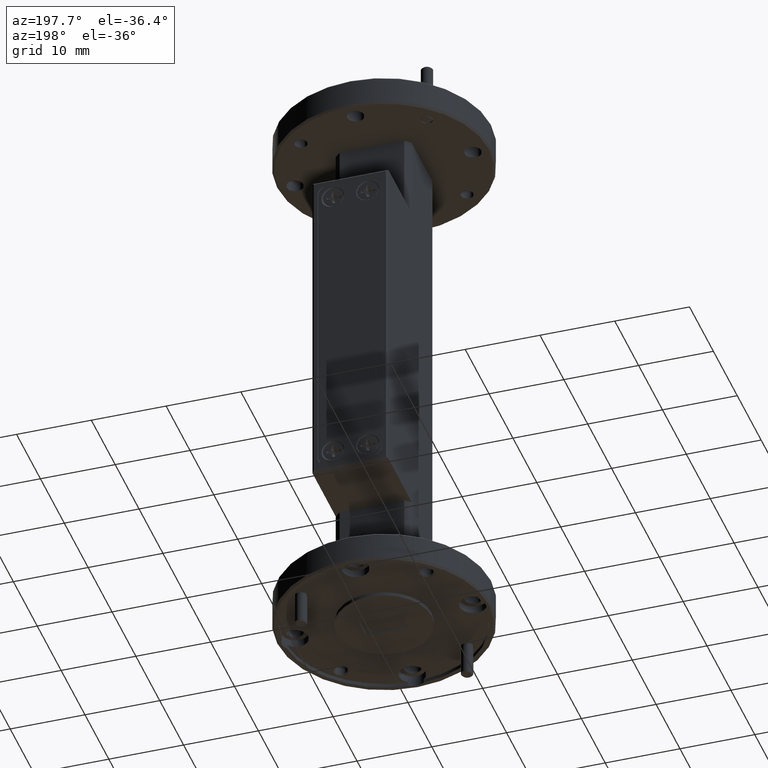
[diagram: clean part render]
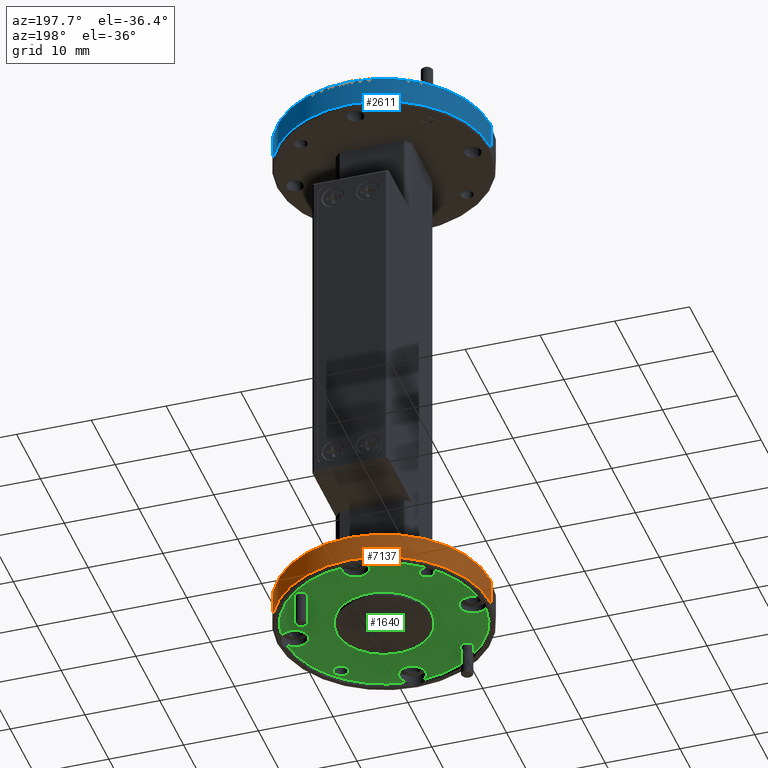
[diagram: same view with three faces highlighted in distinct colors, each labeled with its STEP entity id]
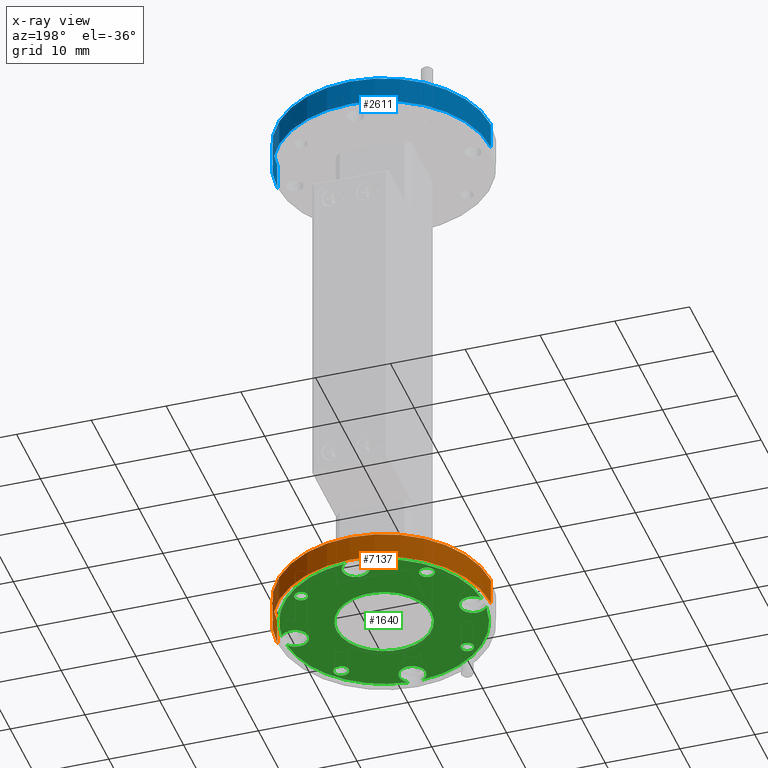
[diagram: x-ray of the same camera — body ghosted, the three highlighted faces saturated]
A machine part, auxiliary view with three faces highlighted in distinct colors.
The next image is the same camera in x-ray (body ghosted, the three faces saturated) — at least one of them is partly hidden behind the body in this view.
Their STEP definitions:

[orange] entity #7137 — the highlighted cylindrical surface (partial cylindrical patch) has radius 14.2875 mm, axis along (0, 0, -1).
#263 = ORIENTED_EDGE ( 'NONE', *, *, #2705, .F. ) ;
#459 = CARTESIAN_POINT ( 'NONE',  ( 0.5625000000000001110, 6.888638245203861944E-17, -1.489999999999999325 ) ) ;
#472 = CARTESIAN_POINT ( 'NONE',  ( -0.5625000000000001110, 0.000000000000000000, -1.349999999999999423 ) ) ;
#641 = FACE_OUTER_BOUND ( 'NONE', #9032, .T. ) ;
#962 = VECTOR ( 'NONE', #1798, 39.37007874015748143 ) ;
#1264 = CARTESIAN_POINT ( 'NONE',  ( -0.5625000000000001110, 0.000000000000000000, -1.340000000000000080 ) ) ;
#1411 = CARTESIAN_POINT ( 'NONE',  ( 0.5625000000000001110, 6.888638245203861944E-17, -1.349999999999999423 ) ) ;
#1439 = EDGE_CURVE ( 'NONE', #3042, #4319, #8680, .T. ) ;
#1650 = EDGE_CURVE ( 'NONE', #7949, #3042, #5597, .T. ) ;
#1798 = DIRECTION ( 'NONE',  ( 0.000000000000000000, 0.000000000000000000, -1.000000000000000000 ) ) ;
#2187 = DIRECTION ( 'NONE',  ( -1.000000000000000000, 0.000000000000000000, 0.000000000000000000 ) ) ;
#2399 = CARTESIAN_POINT ( 'NONE',  ( 0.5625000000000001110, 6.888638245203861944E-17, -1.340000000000000080 ) ) ;
#2705 = EDGE_CURVE ( 'NONE', #2740, #4319, #8337, .T. ) ;
#2740 = VERTEX_POINT ( 'NONE', #472 ) ;
#2851 = ORIENTED_EDGE ( 'NONE', *, *, #6628, .T. ) ;
#2879 = VECTOR ( 'NONE', #7442, 39.37007874015748143 ) ;
#3042 = VERTEX_POINT ( 'NONE', #459 ) ;
#3670 = CARTESIAN_POINT ( 'NONE',  ( 0.000000000000000000, 0.000000000000000000, -1.340000000000000080 ) ) ;
#4051 = CIRCLE ( 'NONE', #5340, 0.5625000000000001110 ) ;
#4148 = CARTESIAN_POINT ( 'NONE',  ( 0.000000000000000000, 0.000000000000000000, -1.489999999999999325 ) ) ;
#4176 = DIRECTION ( 'NONE',  ( -1.000000000000000000, 0.000000000000000000, 0.000000000000000000 ) ) ;
#4319 = VERTEX_POINT ( 'NONE', #9543 ) ;
#4354 = AXIS2_PLACEMENT_3D ( 'NONE', #4148, #8809, #8717 ) ;
#4531 = DIRECTION ( 'NONE',  ( 0.000000000000000000, 0.000000000000000000, -1.000000000000000000 ) ) ;
#4791 = ORIENTED_EDGE ( 'NONE', *, *, #1650, .T. ) ;
#5340 = AXIS2_PLACEMENT_3D ( 'NONE', #5844, #9545, #4176 ) ;
#5597 = LINE ( 'NONE', #2399, #962 ) ;
#5844 = CARTESIAN_POINT ( 'NONE',  ( 0.000000000000000000, 0.000000000000000000, -1.349999999999999423 ) ) ;
#6628 = EDGE_CURVE ( 'NONE', #2740, #7949, #4051, .T. ) ;
#7137 = ADVANCED_FACE ( 'NONE', ( #641 ), #9745, .T. ) ;
#7442 = DIRECTION ( 'NONE',  ( 0.000000000000000000, 0.000000000000000000, -1.000000000000000000 ) ) ;
#7475 = ORIENTED_EDGE ( 'NONE', *, *, #1439, .T. ) ;
#7949 = VERTEX_POINT ( 'NONE', #1411 ) ;
#8337 = LINE ( 'NONE', #1264, #2879 ) ;
#8680 = CIRCLE ( 'NONE', #4354, 0.5625000000000001110 ) ;
#8717 = DIRECTION ( 'NONE',  ( 1.000000000000000000, 0.000000000000000000, 0.000000000000000000 ) ) ;
#8809 = DIRECTION ( 'NONE',  ( -0.000000000000000000, -0.000000000000000000, 1.000000000000000000 ) ) ;
#9032 = EDGE_LOOP ( 'NONE', ( #2851, #4791, #7475, #263 ) ) ;
#9062 = AXIS2_PLACEMENT_3D ( 'NONE', #3670, #4531, #2187 ) ;
#9543 = CARTESIAN_POINT ( 'NONE',  ( -0.5625000000000001110, 0.000000000000000000, -1.489999999999999325 ) ) ;
#9545 = DIRECTION ( 'NONE',  ( 0.000000000000000000, 0.000000000000000000, -1.000000000000000000 ) ) ;
#9745 = CYLINDRICAL_SURFACE ( 'NONE', #9062, 0.5625000000000001110 ) ;

[blue] entity #2611 — the highlighted cylindrical surface (partial cylindrical patch) has radius 14.2875 mm, axis along (0, 0, 1).
#351 = DIRECTION ( 'NONE',  ( 0.000000000000000000, 0.000000000000000000, 1.000000000000000000 ) ) ;
#422 = CYLINDRICAL_SURFACE ( 'NONE', #4492, 0.5625000000000001110 ) ;
#566 = CARTESIAN_POINT ( 'NONE',  ( 0.5625000000000001110, 0.000000000000000000, 1.489999999999999769 ) ) ;
#636 = VERTEX_POINT ( 'NONE', #8751 ) ;
#702 = DIRECTION ( 'NONE',  ( 0.000000000000000000, 0.000000000000000000, 1.000000000000000000 ) ) ;
#739 = EDGE_LOOP ( 'NONE', ( #8334, #4835, #7617, #5016 ) ) ;
#1117 = CARTESIAN_POINT ( 'NONE',  ( 0.000000000000000000, 0.000000000000000000, 1.489999999999999769 ) ) ;
#1166 = VECTOR ( 'NONE', #702, 39.37007874015748143 ) ;
#1235 = DIRECTION ( 'NONE',  ( 1.000000000000000000, 0.000000000000000000, 0.000000000000000000 ) ) ;
#1440 = CARTESIAN_POINT ( 'NONE',  ( 0.5625000000000001110, 0.000000000000000000, 1.350000000000000089 ) ) ;
#1549 = CARTESIAN_POINT ( 'NONE',  ( 0.5625000000000001110, 0.000000000000000000, 1.340000000000000080 ) ) ;
#1768 = VECTOR ( 'NONE', #351, 39.37007874015748143 ) ;
#1990 = CARTESIAN_POINT ( 'NONE',  ( 0.000000000000000000, 0.000000000000000000, 1.350000000000000089 ) ) ;
#2543 = EDGE_CURVE ( 'NONE', #636, #7966, #5444, .T. ) ;
#2545 = CARTESIAN_POINT ( 'NONE',  ( -0.5625000000000001110, 6.888638245203861944E-17, 1.340000000000000080 ) ) ;
#2611 = ADVANCED_FACE ( 'NONE', ( #5724 ), #422, .T. ) ;
#2797 = CARTESIAN_POINT ( 'NONE',  ( -0.5625000000000001110, 6.888638245203861944E-17, 1.350000000000000089 ) ) ;
#3259 = DIRECTION ( 'NONE',  ( 0.000000000000000000, 0.000000000000000000, -1.000000000000000000 ) ) ;
#3315 = EDGE_CURVE ( 'NONE', #5076, #636, #7120, .T. ) ;
#3349 = CARTESIAN_POINT ( 'NONE',  ( 0.000000000000000000, 0.000000000000000000, 1.340000000000000080 ) ) ;
#3645 = EDGE_CURVE ( 'NONE', #7138, #7966, #6821, .T. ) ;
#4492 = AXIS2_PLACEMENT_3D ( 'NONE', #3349, #6428, #8730 ) ;
#4835 = ORIENTED_EDGE ( 'NONE', *, *, #3315, .T. ) ;
#5011 = DIRECTION ( 'NONE',  ( 1.000000000000000000, 0.000000000000000000, 0.000000000000000000 ) ) ;
#5016 = ORIENTED_EDGE ( 'NONE', *, *, #3645, .F. ) ;
#5032 = DIRECTION ( 'NONE',  ( -0.000000000000000000, -0.000000000000000000, 1.000000000000000000 ) ) ;
#5076 = VERTEX_POINT ( 'NONE', #2797 ) ;
#5444 = CIRCLE ( 'NONE', #8007, 0.5625000000000001110 ) ;
#5724 = FACE_OUTER_BOUND ( 'NONE', #739, .T. ) ;
#6004 = CIRCLE ( 'NONE', #8858, 0.5625000000000001110 ) ;
#6428 = DIRECTION ( 'NONE',  ( 0.000000000000000000, 0.000000000000000000, 1.000000000000000000 ) ) ;
#6665 = EDGE_CURVE ( 'NONE', #7138, #5076, #6004, .T. ) ;
#6821 = LINE ( 'NONE', #1549, #1166 ) ;
#7120 = LINE ( 'NONE', #2545, #1768 ) ;
#7138 = VERTEX_POINT ( 'NONE', #1440 ) ;
#7617 = ORIENTED_EDGE ( 'NONE', *, *, #2543, .T. ) ;
#7966 = VERTEX_POINT ( 'NONE', #566 ) ;
#8007 = AXIS2_PLACEMENT_3D ( 'NONE', #1117, #3259, #5011 ) ;
#8334 = ORIENTED_EDGE ( 'NONE', *, *, #6665, .T. ) ;
#8730 = DIRECTION ( 'NONE',  ( 1.000000000000000000, 0.000000000000000000, 0.000000000000000000 ) ) ;
#8751 = CARTESIAN_POINT ( 'NONE',  ( -0.5625000000000001110, 6.888638245203861944E-17, 1.489999999999999769 ) ) ;
#8858 = AXIS2_PLACEMENT_3D ( 'NONE', #1990, #5032, #1235 ) ;

[green] entity #1640 — the highlighted planar face has unit normal (0, 0, -1).
#32 = ORIENTED_EDGE ( 'NONE', *, *, #5494, .T. ) ;
#128 = DIRECTION ( 'NONE',  ( -0.000000000000000000, -0.000000000000000000, -1.000000000000000000 ) ) ;
#149 = AXIS2_PLACEMENT_3D ( 'NONE', #5745, #8800, #4230 ) ;
#171 = AXIS2_PLACEMENT_3D ( 'NONE', #510, #5051, #8120 ) ;
#252 = CARTESIAN_POINT ( 'NONE',  ( 0.4687500000000000000, 0.000000000000000000, -1.479999999999999982 ) ) ;
#265 = CARTESIAN_POINT ( 'NONE',  ( -0.07000000000000010381, -0.4687500000000000000, -1.479999999999999982 ) ) ;
#344 = CARTESIAN_POINT ( 'NONE',  ( -0.2964563036811923569, -0.3314563036811958296, -1.479999999999999982 ) ) ;
#379 = DIRECTION ( 'NONE',  ( -1.000000000000000000, 0.000000000000000000, 0.000000000000000000 ) ) ;
#418 = DIRECTION ( 'NONE',  ( -1.000000000000000000, 0.000000000000000000, 0.000000000000000000 ) ) ;
#484 = AXIS2_PLACEMENT_3D ( 'NONE', #9119, #9878, #2212 ) ;
#504 = ORIENTED_EDGE ( 'NONE', *, *, #8886, .F. ) ;
#510 = CARTESIAN_POINT ( 'NONE',  ( -0.3314563036811946639, 0.3314563036811936092, -1.479999999999999982 ) ) ;
#546 = DIRECTION ( 'NONE',  ( -0.000000000000000000, -0.000000000000000000, -1.000000000000000000 ) ) ;
#605 = EDGE_CURVE ( 'NONE', #5091, #6463, #1354, .T. ) ;
#624 = CIRCLE ( 'NONE', #1418, 0.5274999999999999689 ) ;
#644 = DIRECTION ( 'NONE',  ( -1.000000000000000000, 0.000000000000000000, 0.000000000000000000 ) ) ;
#652 = AXIS2_PLACEMENT_3D ( 'NONE', #3750, #2306, #2210 ) ;
#704 = EDGE_CURVE ( 'NONE', #7245, #822, #3133, .T. ) ;
#821 = DIRECTION ( 'NONE',  ( 0.000000000000000000, 0.000000000000000000, -1.000000000000000000 ) ) ;
#822 = VERTEX_POINT ( 'NONE', #1872 ) ;
#938 = CARTESIAN_POINT ( 'NONE',  ( -9.184850993605148438E-17, -0.4687500000000000000, -1.479999999999999982 ) ) ;
#942 = CIRCLE ( 'NONE', #149, 0.07000000000000000666 ) ;
#967 = EDGE_CURVE ( 'NONE', #5338, #2114, #2624, .T. ) ;
#996 = PLANE ( 'NONE',  #3671 ) ;
#1044 = DIRECTION ( 'NONE',  ( 0.000000000000000000, 0.000000000000000000, -1.000000000000000000 ) ) ;
#1072 = DIRECTION ( 'NONE',  ( -1.000000000000000000, 0.000000000000000000, 0.000000000000000000 ) ) ;
#1091 = DIRECTION ( 'NONE',  ( 0.000000000000000000, 0.000000000000000000, -1.000000000000000000 ) ) ;
#1100 = CARTESIAN_POINT ( 'NONE',  ( -0.07000000000000010381, 0.4687500000000000000, -1.479999999999999982 ) ) ;
#1109 = VERTEX_POINT ( 'NONE', #1470 ) ;
#1134 = DIRECTION ( 'NONE',  ( -1.000000000000000000, 0.000000000000000000, 0.000000000000000000 ) ) ;
#1169 = CIRCLE ( 'NONE', #6791, 0.03500000000000003803 ) ;
#1191 = DIRECTION ( 'NONE',  ( -1.000000000000000000, 0.000000000000000000, 0.000000000000000000 ) ) ;
#1251 = CARTESIAN_POINT ( 'NONE',  ( 0.2500000000000000000, 3.061616997868383018E-17, -1.479999999999999982 ) ) ;
#1262 = AXIS2_PLACEMENT_3D ( 'NONE', #5020, #3507, #5833 ) ;
#1318 = ORIENTED_EDGE ( 'NONE', *, *, #1553, .F. ) ;
#1323 = VERTEX_POINT ( 'NONE', #6322 ) ;
#1331 = CARTESIAN_POINT ( 'NONE',  ( 0.3714563036811946439, -0.3314563036811936092, -1.479999999999999982 ) ) ;
#1354 = CIRCLE ( 'NONE', #3569, 0.07000000000000000666 ) ;
#1358 = DIRECTION ( 'NONE',  ( -0.000000000000000000, -0.000000000000000000, -1.000000000000000000 ) ) ;
#1399 = CARTESIAN_POINT ( 'NONE',  ( 0.000000000000000000, 0.000000000000000000, -1.479999999999999982 ) ) ;
#1418 = AXIS2_PLACEMENT_3D ( 'NONE', #4232, #4939, #2095 ) ;
#1436 = CIRCLE ( 'NONE', #3168, 0.5274999999999999689 ) ;
#1470 = CARTESIAN_POINT ( 'NONE',  ( -0.04034337585031760876, -0.5259549999999999503, -1.479999999999999982 ) ) ;
#1475 = EDGE_CURVE ( 'NONE', #2114, #9507, #6559, .T. ) ;
#1494 = CIRCLE ( 'NONE', #8684, 0.07000000000000000666 ) ;
#1529 = ORIENTED_EDGE ( 'NONE', *, *, #704, .F. ) ;
#1553 = EDGE_CURVE ( 'NONE', #5856, #3709, #9281, .T. ) ;
#1572 = CARTESIAN_POINT ( 'NONE',  ( -9.184850993605148438E-17, -0.4687500000000000000, -1.479999999999999982 ) ) ;
#1633 = CARTESIAN_POINT ( 'NONE',  ( -9.184850993605148438E-17, -0.4687500000000000000, -1.479999999999999982 ) ) ;
#1640 = ADVANCED_FACE ( 'NONE', ( #7164, #3942, #4844, #5451, #8653, #4701 ), #996, .T. ) ;
#1652 = EDGE_CURVE ( 'NONE', #2044, #7447, #3494, .T. ) ;
#1752 = DIRECTION ( 'NONE',  ( 0.000000000000000000, 0.000000000000000000, -1.000000000000000000 ) ) ;
#1758 = CARTESIAN_POINT ( 'NONE',  ( 0.04034337585031740059, 0.5259549999999999503, -1.479999999999999982 ) ) ;
#1805 = EDGE_CURVE ( 'NONE', #8976, #5091, #942, .T. ) ;
#1872 = CARTESIAN_POINT ( 'NONE',  ( -0.2914563036811946839, 0.3314563036811936092, -1.479999999999999982 ) ) ;
#2026 = DIRECTION ( 'NONE',  ( -1.000000000000000000, 0.000000000000000000, 0.000000000000000000 ) ) ;
#2044 = VERTEX_POINT ( 'NONE', #9703 ) ;
#2095 = DIRECTION ( 'NONE',  ( -1.000000000000000000, 0.000000000000000000, 0.000000000000000000 ) ) ;
#2096 = DIRECTION ( 'NONE',  ( 0.000000000000000000, 0.000000000000000000, -1.000000000000000000 ) ) ;
#2114 = VERTEX_POINT ( 'NONE', #1100 ) ;
#2210 = DIRECTION ( 'NONE',  ( -1.000000000000000000, 0.000000000000000000, 0.000000000000000000 ) ) ;
#2212 = DIRECTION ( 'NONE',  ( -1.000000000000000000, 0.000000000000000000, 0.000000000000000000 ) ) ;
#2216 = ORIENTED_EDGE ( 'NONE', *, *, #4662, .F. ) ;
#2227 = EDGE_LOOP ( 'NONE', ( #2216, #3923 ) ) ;
#2262 = EDGE_CURVE ( 'NONE', #2044, #8675, #624, .T. ) ;
#2271 = CARTESIAN_POINT ( 'NONE',  ( 0.04034337585031762957, -0.5259549999999999503, -1.479999999999999982 ) ) ;
#2306 = DIRECTION ( 'NONE',  ( 0.000000000000000000, 0.000000000000000000, -1.000000000000000000 ) ) ;
#2322 = CARTESIAN_POINT ( 'NONE',  ( -0.3314563036811923880, -0.3314563036811958296, -1.479999999999999982 ) ) ;
#2385 = AXIS2_PLACEMENT_3D ( 'NONE', #9441, #3174, #2484 ) ;
#2421 = DIRECTION ( 'NONE',  ( 0.000000000000000000, 0.000000000000000000, -1.000000000000000000 ) ) ;
#2425 = ORIENTED_EDGE ( 'NONE', *, *, #3989, .F. ) ;
#2464 = ORIENTED_EDGE ( 'NONE', *, *, #4001, .T. ) ;
#2484 = DIRECTION ( 'NONE',  ( -1.000000000000000000, 0.000000000000000000, 0.000000000000000000 ) ) ;
#2624 = CIRCLE ( 'NONE', #5188, 0.07000000000000000666 ) ;
#2667 = DIRECTION ( 'NONE',  ( -1.000000000000000000, 0.000000000000000000, 0.000000000000000000 ) ) ;
#2672 = DIRECTION ( 'NONE',  ( -0.000000000000000000, -0.000000000000000000, -1.000000000000000000 ) ) ;
#2763 = ORIENTED_EDGE ( 'NONE', *, *, #8590, .F. ) ;
#3099 = CIRCLE ( 'NONE', #3405, 0.5274999999999999689 ) ;
#3109 = EDGE_CURVE ( 'NONE', #822, #7245, #7053, .T. ) ;
#3121 = VERTEX_POINT ( 'NONE', #1251 ) ;
#3133 = CIRCLE ( 'NONE', #9534, 0.03999999999999998002 ) ;
#3168 = AXIS2_PLACEMENT_3D ( 'NONE', #1399, #2096, #1191 ) ;
#3174 = DIRECTION ( 'NONE',  ( -0.000000000000000000, -0.000000000000000000, -1.000000000000000000 ) ) ;
#3212 = VERTEX_POINT ( 'NONE', #3795 ) ;
#3238 = CIRCLE ( 'NONE', #8061, 0.07000000000000000666 ) ;
#3247 = EDGE_CURVE ( 'NONE', #3212, #3121, #4792, .T. ) ;
#3255 = DIRECTION ( 'NONE',  ( -1.000000000000000000, 0.000000000000000000, 0.000000000000000000 ) ) ;
#3299 = CARTESIAN_POINT ( 'NONE',  ( -0.3664563036811924190, -0.3314563036811958296, -1.479999999999999982 ) ) ;
#3340 = VERTEX_POINT ( 'NONE', #6265 ) ;
#3350 = CARTESIAN_POINT ( 'NONE',  ( 0.3314563036811923880, 0.3314563036811958296, -1.479999999999999982 ) ) ;
#3388 = EDGE_LOOP ( 'NONE', ( #4955, #9891 ) ) ;
#3405 = AXIS2_PLACEMENT_3D ( 'NONE', #7771, #1091, #5599 ) ;
#3490 = CIRCLE ( 'NONE', #7529, 0.03500000000000003803 ) ;
#3494 = CIRCLE ( 'NONE', #6398, 0.07000000000000000666 ) ;
#3507 = DIRECTION ( 'NONE',  ( 0.000000000000000000, 0.000000000000000000, -1.000000000000000000 ) ) ;
#3569 = AXIS2_PLACEMENT_3D ( 'NONE', #8841, #6602, #1134 ) ;
#3574 = DIRECTION ( 'NONE',  ( -1.000000000000000000, 0.000000000000000000, 0.000000000000000000 ) ) ;
#3651 = CIRCLE ( 'NONE', #5990, 0.07000000000000000666 ) ;
#3671 = AXIS2_PLACEMENT_3D ( 'NONE', #7911, #1752, #5405 ) ;
#3709 = VERTEX_POINT ( 'NONE', #7155 ) ;
#3750 = CARTESIAN_POINT ( 'NONE',  ( 0.000000000000000000, 0.000000000000000000, -1.479999999999999982 ) ) ;
#3795 = CARTESIAN_POINT ( 'NONE',  ( -0.2500000000000000000, 0.000000000000000000, -1.479999999999999982 ) ) ;
#3818 = ORIENTED_EDGE ( 'NONE', *, *, #1652, .F. ) ;
#3923 = ORIENTED_EDGE ( 'NONE', *, *, #8867, .F. ) ;
#3942 = FACE_BOUND ( 'NONE', #6135, .T. ) ;
#3983 = AXIS2_PLACEMENT_3D ( 'NONE', #5048, #5096, #8910 ) ;
#3989 = EDGE_CURVE ( 'NONE', #3709, #5856, #8072, .T. ) ;
#4001 = EDGE_CURVE ( 'NONE', #9444, #3340, #3099, .T. ) ;
#4027 = DIRECTION ( 'NONE',  ( -1.000000000000000000, 0.000000000000000000, 0.000000000000000000 ) ) ;
#4066 = CARTESIAN_POINT ( 'NONE',  ( 0.3987499999999999933, 0.000000000000000000, -1.479999999999999982 ) ) ;
#4154 = VERTEX_POINT ( 'NONE', #344 ) ;
#4230 = DIRECTION ( 'NONE',  ( -1.000000000000000000, 0.000000000000000000, 0.000000000000000000 ) ) ;
#4232 = CARTESIAN_POINT ( 'NONE',  ( 0.000000000000000000, 0.000000000000000000, -1.479999999999999982 ) ) ;
#4286 = CARTESIAN_POINT ( 'NONE',  ( -0.04034337585031760876, 0.5259549999999999503, -1.479999999999999982 ) ) ;
#4367 = AXIS2_PLACEMENT_3D ( 'NONE', #1633, #2421, #3255 ) ;
#4618 = DIRECTION ( 'NONE',  ( -1.000000000000000000, 0.000000000000000000, 0.000000000000000000 ) ) ;
#4662 = EDGE_CURVE ( 'NONE', #7449, #4154, #3490, .T. ) ;
#4672 = ORIENTED_EDGE ( 'NONE', *, *, #6169, .F. ) ;
#4701 = FACE_BOUND ( 'NONE', #3388, .T. ) ;
#4760 = EDGE_CURVE ( 'NONE', #7447, #3340, #8318, .T. ) ;
#4792 = CIRCLE ( 'NONE', #484, 0.2500000000000000000 ) ;
#4797 = DIRECTION ( 'NONE',  ( -1.000000000000000000, 0.000000000000000000, 0.000000000000000000 ) ) ;
#4829 = DIRECTION ( 'NONE',  ( 0.000000000000000000, 0.000000000000000000, -1.000000000000000000 ) ) ;
#4844 = FACE_BOUND ( 'NONE', #9157, .T. ) ;
#4939 = DIRECTION ( 'NONE',  ( 0.000000000000000000, 0.000000000000000000, -1.000000000000000000 ) ) ;
#4955 = ORIENTED_EDGE ( 'NONE', *, *, #3247, .F. ) ;
#4989 = VERTEX_POINT ( 'NONE', #265 ) ;
#5020 = CARTESIAN_POINT ( 'NONE',  ( 0.4687500000000000000, 0.000000000000000000, -1.479999999999999982 ) ) ;
#5048 = CARTESIAN_POINT ( 'NONE',  ( -9.184850993605148438E-17, 0.4687500000000000000, -1.479999999999999982 ) ) ;
#5051 = DIRECTION ( 'NONE',  ( -0.000000000000000000, -0.000000000000000000, -1.000000000000000000 ) ) ;
#5091 = VERTEX_POINT ( 'NONE', #7378 ) ;
#5096 = DIRECTION ( 'NONE',  ( 0.000000000000000000, 0.000000000000000000, -1.000000000000000000 ) ) ;
#5188 = AXIS2_PLACEMENT_3D ( 'NONE', #9572, #7334, #418 ) ;
#5222 = EDGE_CURVE ( 'NONE', #3121, #3212, #8481, .T. ) ;
#5250 = ORIENTED_EDGE ( 'NONE', *, *, #9871, .T. ) ;
#5338 = VERTEX_POINT ( 'NONE', #5501 ) ;
#5374 = DIRECTION ( 'NONE',  ( -1.000000000000000000, 0.000000000000000000, 0.000000000000000000 ) ) ;
#5405 = DIRECTION ( 'NONE',  ( -1.000000000000000000, 0.000000000000000000, -0.000000000000000000 ) ) ;
#5451 = FACE_BOUND ( 'NONE', #2227, .T. ) ;
#5465 = ORIENTED_EDGE ( 'NONE', *, *, #605, .F. ) ;
#5494 = EDGE_CURVE ( 'NONE', #1109, #6463, #1436, .T. ) ;
#5501 = CARTESIAN_POINT ( 'NONE',  ( 0.06999999999999990952, 0.4687500000000000000, -1.479999999999999982 ) ) ;
#5599 = DIRECTION ( 'NONE',  ( -1.000000000000000000, 0.000000000000000000, 0.000000000000000000 ) ) ;
#5728 = VERTEX_POINT ( 'NONE', #6297 ) ;
#5745 = CARTESIAN_POINT ( 'NONE',  ( -0.4687500000000000000, 0.000000000000000000, -1.479999999999999982 ) ) ;
#5775 = EDGE_CURVE ( 'NONE', #1323, #5928, #9740, .T. ) ;
#5785 = EDGE_CURVE ( 'NONE', #5728, #8675, #3651, .T. ) ;
#5833 = DIRECTION ( 'NONE',  ( -1.000000000000000000, 0.000000000000000000, 0.000000000000000000 ) ) ;
#5856 = VERTEX_POINT ( 'NONE', #1331 ) ;
#5897 = ORIENTED_EDGE ( 'NONE', *, *, #5775, .F. ) ;
#5928 = VERTEX_POINT ( 'NONE', #6594 ) ;
#5951 = ORIENTED_EDGE ( 'NONE', *, *, #2262, .T. ) ;
#5952 = CARTESIAN_POINT ( 'NONE',  ( -0.3314563036811946639, 0.3314563036811936092, -1.479999999999999982 ) ) ;
#5990 = AXIS2_PLACEMENT_3D ( 'NONE', #938, #4829, #4027 ) ;
#6001 = CARTESIAN_POINT ( 'NONE',  ( 0.3314563036811946639, -0.3314563036811936092, -1.479999999999999982 ) ) ;
#6135 = EDGE_LOOP ( 'NONE', ( #2425, #1318 ) ) ;
#6139 = ORIENTED_EDGE ( 'NONE', *, *, #1475, .F. ) ;
#6169 = EDGE_CURVE ( 'NONE', #4989, #5728, #7587, .T. ) ;
#6265 = CARTESIAN_POINT ( 'NONE',  ( 0.5259549999999999503, 0.04034337585031760876, -1.479999999999999982 ) ) ;
#6297 = CARTESIAN_POINT ( 'NONE',  ( 0.06999999999999990952, -0.4687500000000000000, -1.479999999999999982 ) ) ;
#6322 = CARTESIAN_POINT ( 'NONE',  ( 0.3664563036811924190, 0.3314563036811958296, -1.479999999999999982 ) ) ;
#6357 = CARTESIAN_POINT ( 'NONE',  ( -0.5259549999999999503, -0.04034337585031767121, -1.479999999999999982 ) ) ;
#6398 = AXIS2_PLACEMENT_3D ( 'NONE', #252, #1044, #4797 ) ;
#6463 = VERTEX_POINT ( 'NONE', #6357 ) ;
#6559 = CIRCLE ( 'NONE', #3983, 0.07000000000000000666 ) ;
#6594 = CARTESIAN_POINT ( 'NONE',  ( 0.2964563036811923569, 0.3314563036811958296, -1.479999999999999982 ) ) ;
#6602 = DIRECTION ( 'NONE',  ( 0.000000000000000000, 0.000000000000000000, -1.000000000000000000 ) ) ;
#6670 = ORIENTED_EDGE ( 'NONE', *, *, #3109, .F. ) ;
#6791 = AXIS2_PLACEMENT_3D ( 'NONE', #3350, #8681, #2667 ) ;
#7000 = CIRCLE ( 'NONE', #7149, 0.5274999999999999689 ) ;
#7053 = CIRCLE ( 'NONE', #171, 0.03999999999999998002 ) ;
#7149 = AXIS2_PLACEMENT_3D ( 'NONE', #8348, #7452, #2026 ) ;
#7155 = CARTESIAN_POINT ( 'NONE',  ( 0.2914563036811946839, -0.3314563036811936092, -1.479999999999999982 ) ) ;
#7164 = FACE_BOUND ( 'NONE', #7765, .T. ) ;
#7204 = ORIENTED_EDGE ( 'NONE', *, *, #967, .F. ) ;
#7245 = VERTEX_POINT ( 'NONE', #7842 ) ;
#7297 = CARTESIAN_POINT ( 'NONE',  ( -0.3314563036811923880, -0.3314563036811958296, -1.479999999999999982 ) ) ;
#7334 = DIRECTION ( 'NONE',  ( 0.000000000000000000, 0.000000000000000000, -1.000000000000000000 ) ) ;
#7339 = DIRECTION ( 'NONE',  ( 0.000000000000000000, 0.000000000000000000, -1.000000000000000000 ) ) ;
#7342 = ORIENTED_EDGE ( 'NONE', *, *, #8621, .F. ) ;
#7378 = CARTESIAN_POINT ( 'NONE',  ( -0.3987499999999999933, 8.572527594031471957E-18, -1.479999999999999982 ) ) ;
#7447 = VERTEX_POINT ( 'NONE', #4066 ) ;
#7449 = VERTEX_POINT ( 'NONE', #3299 ) ;
#7452 = DIRECTION ( 'NONE',  ( 0.000000000000000000, 0.000000000000000000, -1.000000000000000000 ) ) ;
#7506 = DIRECTION ( 'NONE',  ( -0.000000000000000000, -0.000000000000000000, -1.000000000000000000 ) ) ;
#7529 = AXIS2_PLACEMENT_3D ( 'NONE', #7297, #2672, #379 ) ;
#7587 = CIRCLE ( 'NONE', #4367, 0.07000000000000000666 ) ;
#7596 = AXIS2_PLACEMENT_3D ( 'NONE', #2322, #128, #5374 ) ;
#7698 = EDGE_LOOP ( 'NONE', ( #7342, #2464, #8059, #3818, #5951, #9127, #4672, #504, #32, #5465, #9516, #5250, #6139, #7204 ) ) ;
#7765 = EDGE_LOOP ( 'NONE', ( #1529, #6670 ) ) ;
#7771 = CARTESIAN_POINT ( 'NONE',  ( 0.000000000000000000, 0.000000000000000000, -1.479999999999999982 ) ) ;
#7842 = CARTESIAN_POINT ( 'NONE',  ( -0.3714563036811946439, 0.3314563036811936092, -1.479999999999999982 ) ) ;
#7911 = CARTESIAN_POINT ( 'NONE',  ( 0.000000000000000000, 0.000000000000000000, -1.479999999999999982 ) ) ;
#7937 = CARTESIAN_POINT ( 'NONE',  ( -9.184850993605148438E-17, 0.4687500000000000000, -1.479999999999999982 ) ) ;
#8059 = ORIENTED_EDGE ( 'NONE', *, *, #4760, .F. ) ;
#8061 = AXIS2_PLACEMENT_3D ( 'NONE', #1572, #821, #4618 ) ;
#8072 = CIRCLE ( 'NONE', #9347, 0.03999999999999998002 ) ;
#8120 = DIRECTION ( 'NONE',  ( -1.000000000000000000, 0.000000000000000000, 0.000000000000000000 ) ) ;
#8318 = CIRCLE ( 'NONE', #1262, 0.07000000000000000666 ) ;
#8321 = CARTESIAN_POINT ( 'NONE',  ( 0.3314563036811946639, -0.3314563036811936092, -1.479999999999999982 ) ) ;
#8348 = CARTESIAN_POINT ( 'NONE',  ( 0.000000000000000000, 0.000000000000000000, -1.479999999999999982 ) ) ;
#8481 = CIRCLE ( 'NONE', #652, 0.2500000000000000000 ) ;
#8590 = EDGE_CURVE ( 'NONE', #5928, #1323, #1169, .T. ) ;
#8621 = EDGE_CURVE ( 'NONE', #9444, #5338, #1494, .T. ) ;
#8653 = FACE_OUTER_BOUND ( 'NONE', #7698, .T. ) ;
#8675 = VERTEX_POINT ( 'NONE', #2271 ) ;
#8681 = DIRECTION ( 'NONE',  ( -0.000000000000000000, -0.000000000000000000, -1.000000000000000000 ) ) ;
#8684 = AXIS2_PLACEMENT_3D ( 'NONE', #7937, #7339, #1072 ) ;
#8800 = DIRECTION ( 'NONE',  ( 0.000000000000000000, 0.000000000000000000, -1.000000000000000000 ) ) ;
#8841 = CARTESIAN_POINT ( 'NONE',  ( -0.4687500000000000000, 0.000000000000000000, -1.479999999999999982 ) ) ;
#8867 = EDGE_CURVE ( 'NONE', #4154, #7449, #9178, .T. ) ;
#8886 = EDGE_CURVE ( 'NONE', #1109, #4989, #3238, .T. ) ;
#8910 = DIRECTION ( 'NONE',  ( -1.000000000000000000, 0.000000000000000000, 0.000000000000000000 ) ) ;
#8976 = VERTEX_POINT ( 'NONE', #9467 ) ;
#9119 = CARTESIAN_POINT ( 'NONE',  ( 0.000000000000000000, 0.000000000000000000, -1.479999999999999982 ) ) ;
#9127 = ORIENTED_EDGE ( 'NONE', *, *, #5785, .F. ) ;
#9157 = EDGE_LOOP ( 'NONE', ( #2763, #5897 ) ) ;
#9178 = CIRCLE ( 'NONE', #7596, 0.03500000000000003803 ) ;
#9281 = CIRCLE ( 'NONE', #9766, 0.03999999999999998002 ) ;
#9347 = AXIS2_PLACEMENT_3D ( 'NONE', #6001, #7506, #644 ) ;
#9441 = CARTESIAN_POINT ( 'NONE',  ( 0.3314563036811923880, 0.3314563036811958296, -1.479999999999999982 ) ) ;
#9444 = VERTEX_POINT ( 'NONE', #1758 ) ;
#9467 = CARTESIAN_POINT ( 'NONE',  ( -0.5259549999999999503, 0.04034337585031750467, -1.479999999999999982 ) ) ;
#9507 = VERTEX_POINT ( 'NONE', #4286 ) ;
#9516 = ORIENTED_EDGE ( 'NONE', *, *, #1805, .F. ) ;
#9534 = AXIS2_PLACEMENT_3D ( 'NONE', #5952, #546, #3574 ) ;
#9572 = CARTESIAN_POINT ( 'NONE',  ( -9.184850993605148438E-17, 0.4687500000000000000, -1.479999999999999982 ) ) ;
#9703 = CARTESIAN_POINT ( 'NONE',  ( 0.5259549999999999503, -0.04034337585031750467, -1.479999999999999982 ) ) ;
#9740 = CIRCLE ( 'NONE', #2385, 0.03500000000000003803 ) ;
#9766 = AXIS2_PLACEMENT_3D ( 'NONE', #8321, #1358, #9830 ) ;
#9830 = DIRECTION ( 'NONE',  ( -1.000000000000000000, 0.000000000000000000, 0.000000000000000000 ) ) ;
#9871 = EDGE_CURVE ( 'NONE', #8976, #9507, #7000, .T. ) ;
#9878 = DIRECTION ( 'NONE',  ( 0.000000000000000000, 0.000000000000000000, -1.000000000000000000 ) ) ;
#9891 = ORIENTED_EDGE ( 'NONE', *, *, #5222, .F. ) ;